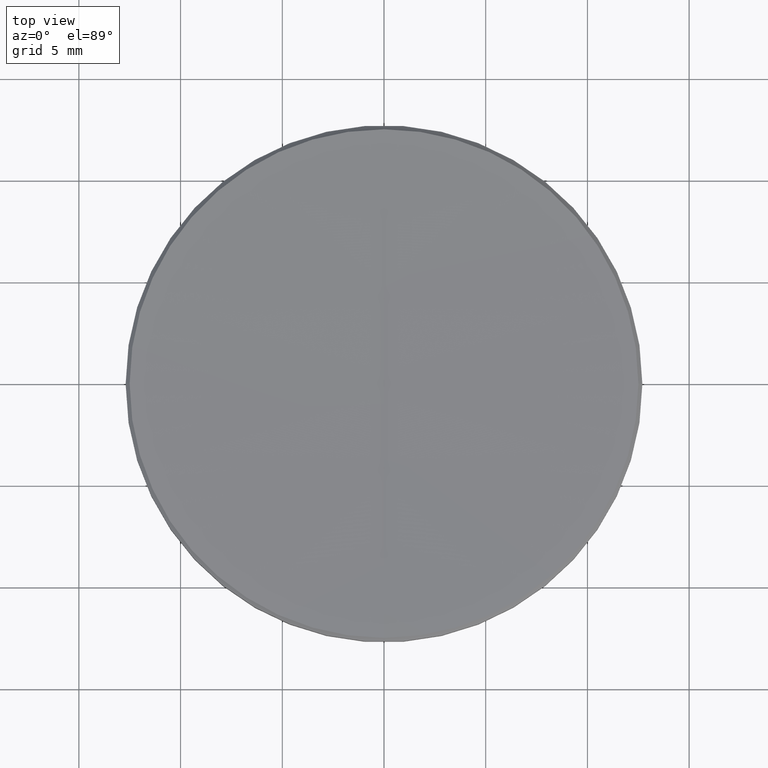
[diagram: clean part render]
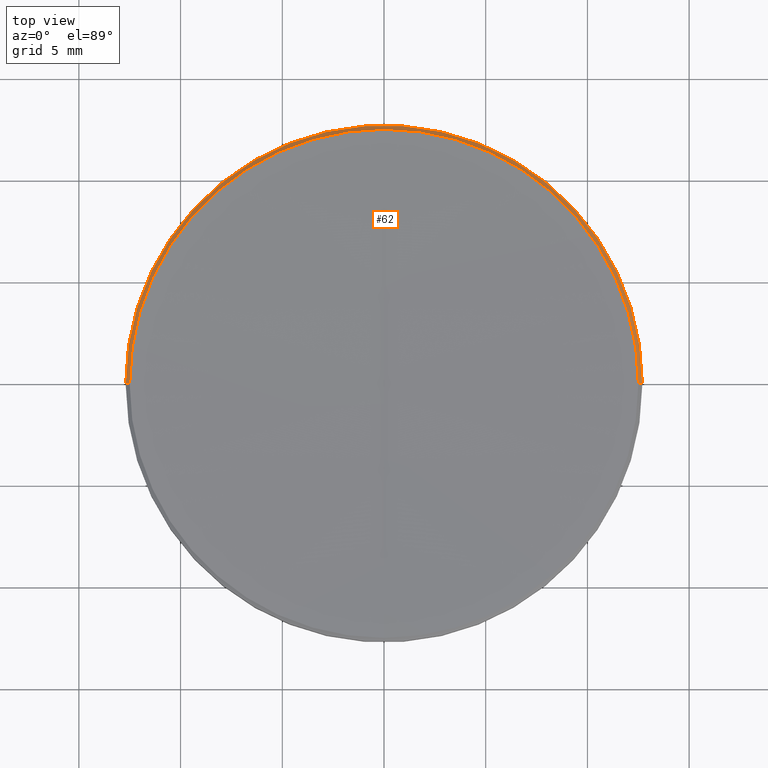
[diagram: same view with one face highlighted and labeled with its STEP entity id]
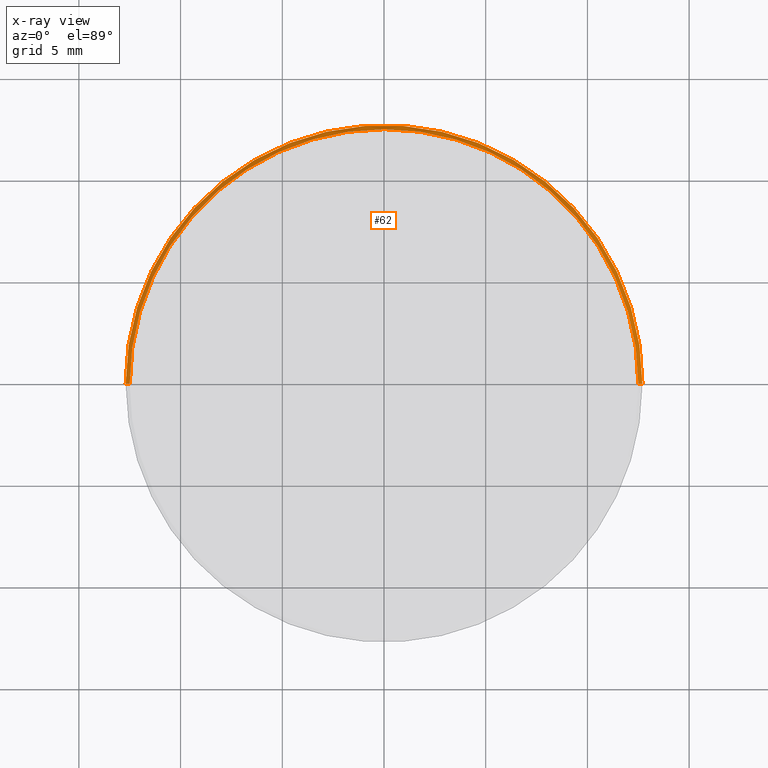
[diagram: x-ray of the same camera — body ghosted, the highlighted face saturated]
A machine part, top view. The second image highlights one B-rep face of the part: STEP entity #62.
The next image is the same camera in x-ray: the body ghosted, the highlighted face saturated — about 0% of this face is hidden behind the body in this view.
In plain terms, the highlighted conical surface has half-angle 45 deg.
Its self-contained STEP definition (entity closure, byte-faithful):
#3 = DIRECTION ( 'NONE',  ( -0.7071067811865506814, 0.000000000000000000, -0.7071067811865443531 ) ) ;
#6 = AXIS2_PLACEMENT_3D ( 'NONE', #54, #28, #308 ) ;
#23 = DIRECTION ( 'NONE',  ( -1.000000000000000000, 0.000000000000000000, 0.000000000000000000 ) ) ;
#24 = VERTEX_POINT ( 'NONE', #236 ) ;
#28 = DIRECTION ( 'NONE',  ( 0.000000000000000000, 0.000000000000000000, -1.000000000000000000 ) ) ;
#40 = CIRCLE ( 'NONE', #155, 12.50409250075131062 ) ;
#54 = CARTESIAN_POINT ( 'NONE',  ( 0.000000000000000000, 0.000000000000000000, 5.799999999999916334 ) ) ;
#62 = ADVANCED_FACE ( 'NONE', ( #254 ), #295, .T. ) ;
#69 = VECTOR ( 'NONE', #3, 1000.000000000000114 ) ;
#111 = CARTESIAN_POINT ( 'NONE',  ( 0.000000000000000000, 0.000000000000000000, 5.995907499248387396 ) ) ;
#117 = CIRCLE ( 'NONE', #6, 12.69999999999999929 ) ;
#124 = CIRCLE ( 'NONE', #261, 12.50409250075131062 ) ;
#126 = EDGE_LOOP ( 'NONE', ( #328, #195, #265, #227, #242 ) ) ;
#146 = VERTEX_POINT ( 'NONE', #307 ) ;
#147 = VERTEX_POINT ( 'NONE', #301 ) ;
#153 = LINE ( 'NONE', #156, #205 ) ;
#155 = AXIS2_PLACEMENT_3D ( 'NONE', #111, #284, #260 ) ;
#156 = CARTESIAN_POINT ( 'NONE',  ( 12.50409250075130529, 1.531309685728750775E-15, 5.995907499248609440 ) ) ;
#159 = DIRECTION ( 'NONE',  ( 0.000000000000000000, 0.000000000000000000, -1.000000000000000000 ) ) ;
#185 = CARTESIAN_POINT ( 'NONE',  ( -12.50409250075131062, 0.000000000000000000, 5.995907499248387396 ) ) ;
#195 = ORIENTED_EDGE ( 'NONE', *, *, #218, .T. ) ;
#198 = VERTEX_POINT ( 'NONE', #185 ) ;
#205 = VECTOR ( 'NONE', #250, 1000.000000000000114 ) ;
#206 = EDGE_CURVE ( 'NONE', #293, #198, #40, .T. ) ;
#213 = CARTESIAN_POINT ( 'NONE',  ( 0.000000000000000000, 12.50409250074720546, 5.995907499248387396 ) ) ;
#218 = EDGE_CURVE ( 'NONE', #24, #147, #153, .T. ) ;
#227 = ORIENTED_EDGE ( 'NONE', *, *, #266, .F. ) ;
#233 = DIRECTION ( 'NONE',  ( 1.000000000000000000, 0.000000000000000000, 0.000000000000000000 ) ) ;
#235 = LINE ( 'NONE', #303, #69 ) ;
#236 = CARTESIAN_POINT ( 'NONE',  ( 12.50409250075131062, 1.543305560322944900E-15, 5.995907499248387396 ) ) ;
#242 = ORIENTED_EDGE ( 'NONE', *, *, #206, .F. ) ;
#244 = EDGE_CURVE ( 'NONE', #24, #293, #124, .T. ) ;
#249 = CARTESIAN_POINT ( 'NONE',  ( 0.000000000000000000, 0.000000000000000000, 5.995907499248609440 ) ) ;
#250 = DIRECTION ( 'NONE',  ( 0.7071067811865506814, 8.659560562354969836E-17, -0.7071067811865443531 ) ) ;
#254 = FACE_OUTER_BOUND ( 'NONE', #126, .T. ) ;
#257 = CARTESIAN_POINT ( 'NONE',  ( 0.000000000000000000, 0.000000000000000000, 5.995907499248387396 ) ) ;
#260 = DIRECTION ( 'NONE',  ( 1.000000000000000000, 0.000000000000000000, 0.000000000000000000 ) ) ;
#261 = AXIS2_PLACEMENT_3D ( 'NONE', #257, #329, #233 ) ;
#265 = ORIENTED_EDGE ( 'NONE', *, *, #280, .F. ) ;
#266 = EDGE_CURVE ( 'NONE', #198, #146, #235, .T. ) ;
#280 = EDGE_CURVE ( 'NONE', #146, #147, #117, .T. ) ;
#283 = AXIS2_PLACEMENT_3D ( 'NONE', #249, #159, #23 ) ;
#284 = DIRECTION ( 'NONE',  ( -0.000000000000000000, -0.000000000000000000, 1.000000000000000000 ) ) ;
#293 = VERTEX_POINT ( 'NONE', #213 ) ;
#295 = CONICAL_SURFACE ( 'NONE', #283, 12.50409250075130529, 0.7853981633974528309 ) ;
#301 = CARTESIAN_POINT ( 'NONE',  ( 12.69999999999999929, 1.555301434917138433E-15, 5.799999999999916334 ) ) ;
#303 = CARTESIAN_POINT ( 'NONE',  ( -12.50409250075130529, 0.000000000000000000, 5.995907499248609440 ) ) ;
#307 = CARTESIAN_POINT ( 'NONE',  ( -12.69999999999999929, 0.000000000000000000, 5.799999999999916334 ) ) ;
#308 = DIRECTION ( 'NONE',  ( 1.000000000000000000, 0.000000000000000000, 0.000000000000000000 ) ) ;
#328 = ORIENTED_EDGE ( 'NONE', *, *, #244, .F. ) ;
#329 = DIRECTION ( 'NONE',  ( -0.000000000000000000, -0.000000000000000000, 1.000000000000000000 ) ) ;